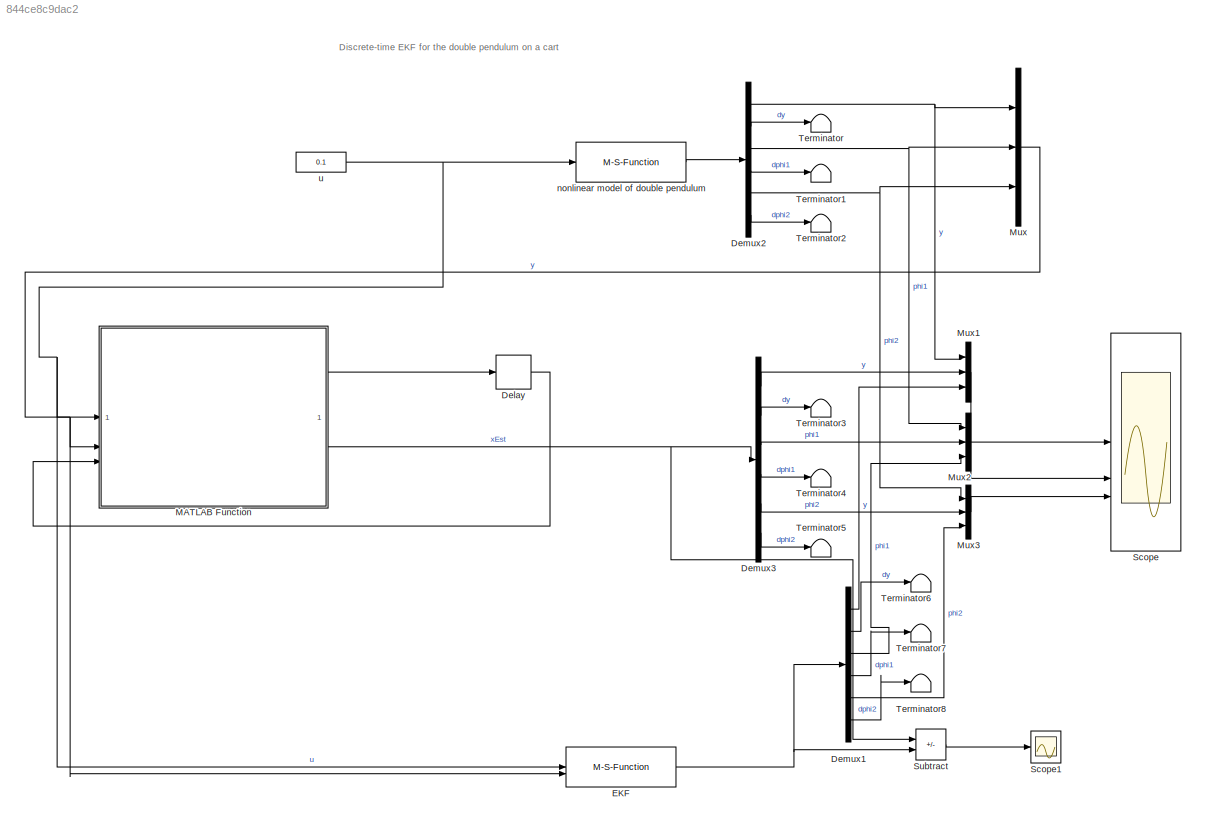
MODEL slx_844ce8c9dac2
KIND model
CONFIG AbsTol = auto
CONFIG EnableMultiTasking = on
CONFIG FixedStep = timeStep
CONFIG MaxStep = 0.05
CONFIG MinStep = auto
CONFIG RelTol = 1e-3
CONFIG SampleTimeConstraint = Unconstrained
CONFIG SolverName = ode4
CONFIG StartTime = 0.0
CONFIG StopTime = 10
BLOCK [Delay] Delay
  DelayLength = 1
  InitialCondition = hx0e
  InputPortMap = u0
BLOCK [Demux] Demux1
  Outputs = 6
BLOCK [Demux] Demux2
  Outputs = 6
BLOCK [Demux] Demux3
  Outputs = 6
BLOCK [M-S-Function] EKF
  FunctionName = dip_ekf_sfunc_ref
  Parameters = hx0e,Q,R
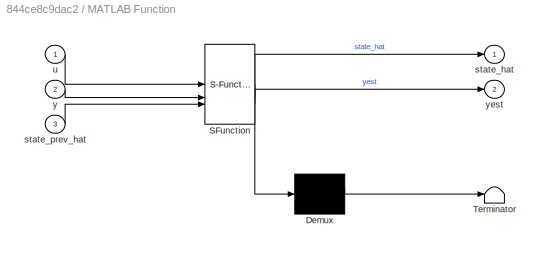
BLOCK [SubSystem] MATLAB Function
  ErrorFcn = Stateflow.Translate.translate
  PermitHierarchicalResolution = ExplicitOnly
  SFBlockType = MATLAB Function
  TreatAsAtomicUnit = on
BLOCK [Demux] MATLAB Function/ Demux 
  Outputs = 1
BLOCK [S-Function] MATLAB Function/ SFunction 
  EnableBusSupport = off
  FunctionName = sf_sfun
  Parameters = Q,R,par
  PortCounts = [3 3]
  SFcnIsStateOwnerBlock = off
  SFunctionDeploymentMode = off
  Tag = Stateflow S-Function 2
BLOCK [Terminator] MATLAB Function/ Terminator 
BLOCK [Outport] MATLAB Function/state_hat
  VectorParamsAs1DForOutWhenUnconnected = off
BLOCK [Inport] MATLAB Function/state_prev_hat
  Port = 3
BLOCK [Inport] MATLAB Function/u
BLOCK [Inport] MATLAB Function/y
  Port = 2
BLOCK [Outport] MATLAB Function/yest
  Port = 2
  VectorParamsAs1DForOutWhenUnconnected = off
BLOCK [Mux] Mux
  DisplayOption = bar
  Inputs = 3
BLOCK [Mux] Mux1
  DisplayOption = bar
  Inputs = 3
BLOCK [Mux] Mux2
  DisplayOption = bar
  Inputs = 3
BLOCK [Mux] Mux3
  DisplayOption = bar
  Inputs = 3
BLOCK [Scope] Scope
  Floating = off
  NumInputPorts = 3
  ScopeSpecificationString = Simulink.scopes.TimeScopeBlockCfg('CurrentConfiguration', extmgr.ConfigurationSet(extmgr.Configuration('Core','General UI',true),extmgr.Configuration('Core','Source UI',true),extmgr.Configuration('Sources','WiredSimulink',true),extmgr.Configuration('Visuals','Time Domain',true,'SerializedDisplays',{struct('MinYLimReal','-0.6261','MaxYLimReal','5.62512','YLabelReal','','MinYLimMag','0.00000','MaxYL...<+2940ch>
BLOCK [Scope] Scope1
  Floating = off
  NumInputPorts = 1
  ScopeSpecificationString = Simulink.scopes.TimeScopeBlockCfg('CurrentConfiguration', extmgr.ConfigurationSet(extmgr.Configuration('Core','General UI',true),extmgr.Configuration('Core','Source UI',true),extmgr.Configuration('Sources','WiredSimulink',true,'DataLoggingVariableName','ScopeData1'),extmgr.Configuration('Visuals','Time Domain',true,'SerializedDisplays',{struct('MinYLimReal','-1.22125','MaxYLimReal','1.4447','YLabe...<+1475ch>
BLOCK [Sum] Subtract
  IconShape = rectangular
  Inputs = +-
BLOCK [Terminator] Terminator
BLOCK [Terminator] Terminator1
BLOCK [Terminator] Terminator2
BLOCK [Terminator] Terminator3
BLOCK [Terminator] Terminator4
BLOCK [Terminator] Terminator5
BLOCK [Terminator] Terminator6
BLOCK [Terminator] Terminator7
BLOCK [Terminator] Terminator8
BLOCK [M-S-Function] nonlinear model of double pendulum
  FunctionName = dip_sim_ref
  Parameters = x0
BLOCK [Constant] u
  Value = 0.1
ANNOTATION (root): Discrete-time EKF for the double pendulum on a cart
LINE Delay:1 -> MATLAB Function:3
LINE Demux1:1 -> Mux1:3
LINE Demux1:2 -> Terminator6:1
LINE Demux1:3 -> Mux2:3
LINE Demux1:4 -> Terminator7:1
LINE Demux1:5 -> Mux3:3
LINE Demux1:6 -> Terminator8:1
NET Demux2:1 -> Mux1:1, Mux:1
LINE Demux2:2 -> Terminator:1
NET Demux2:3 -> Mux2:1, Mux:2
LINE Demux2:4 -> Terminator1:1
NET Demux2:5 -> Mux3:1, Mux:3
LINE Demux2:6 -> Terminator2:1
LINE Demux3:1 -> Mux1:2
LINE Demux3:2 -> Terminator3:1
LINE Demux3:3 -> Mux2:2
LINE Demux3:4 -> Terminator4:1
LINE Demux3:5 -> Mux3:2
LINE Demux3:6 -> Terminator5:1
NET EKF:1 -> Demux1:1, Subtract:2
LINE MATLAB Function:1 -> Delay:1
NET MATLAB Function:2 -> Demux3:1, Subtract:1
LINE Mux1:1 -> Scope:1
LINE Mux2:1 -> Scope:2
LINE Mux3:1 -> Scope:3
NET Mux:1 -> EKF:2, MATLAB Function:2
LINE Subtract:1 -> Scope1:1
LINE nonlinear model of double pendulum:1 -> Demux2:1
NET u:1 -> EKF:1, MATLAB Function:1, nonlinear model of double pendulum:1
note: NET lines group one-source signal fan-out (src -> all destinations, sorted); 1:1 wires keep LINE
CHART MATLAB Function states=1 transitions=1
  STATE_LABEL 'eML_blk_kernel()'
  STATE_LABEL 'SCRIPT:\nfunction [state_hat, yest] = fcn(u, y, state_prev_hat, R, Q, par)\n    h = @(x) [x(1); x(3); x(5)];\n    H = [1 0 0 0 0 0; 0 0 1 0 0 0; 0 0 0 0 1 0;];\n    timeStep = 0.01;\n    x_hat = state_prev_hat(1:6, :);\n    P = reshape( state_prev_hat(7:end), 6,6);\n    \n    %F = Fjac( x_hat, u, par);\n    s1 = f(x_hat, u, par);\n    s2 = f(x_hat+timeStep/2*s1, u, par);\n    s3 = f(x_hat+timeStep/2*s2, u, p...<+3608ch>'
CHART  states=0 transitions=0
